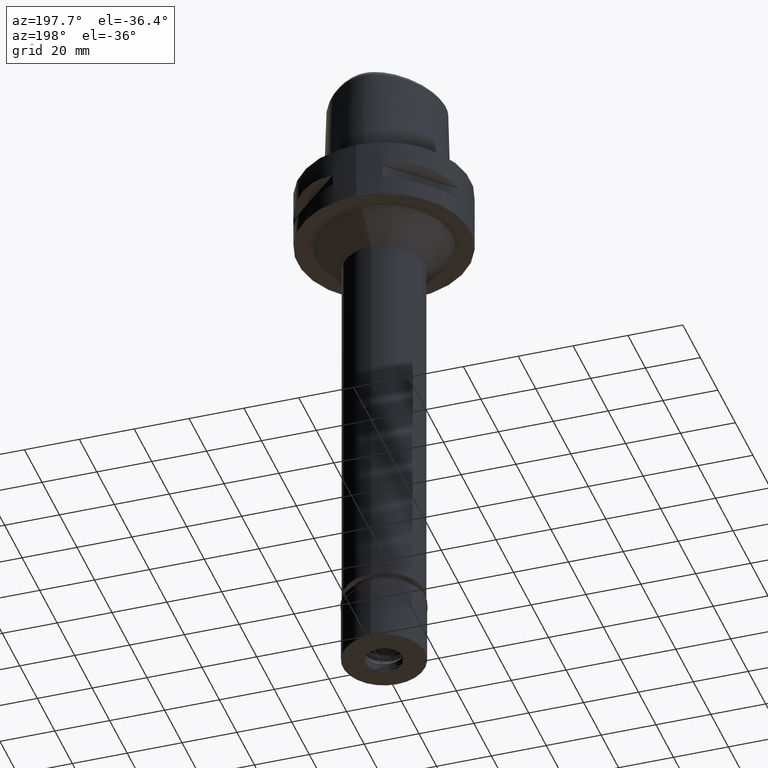
[diagram: clean part render]
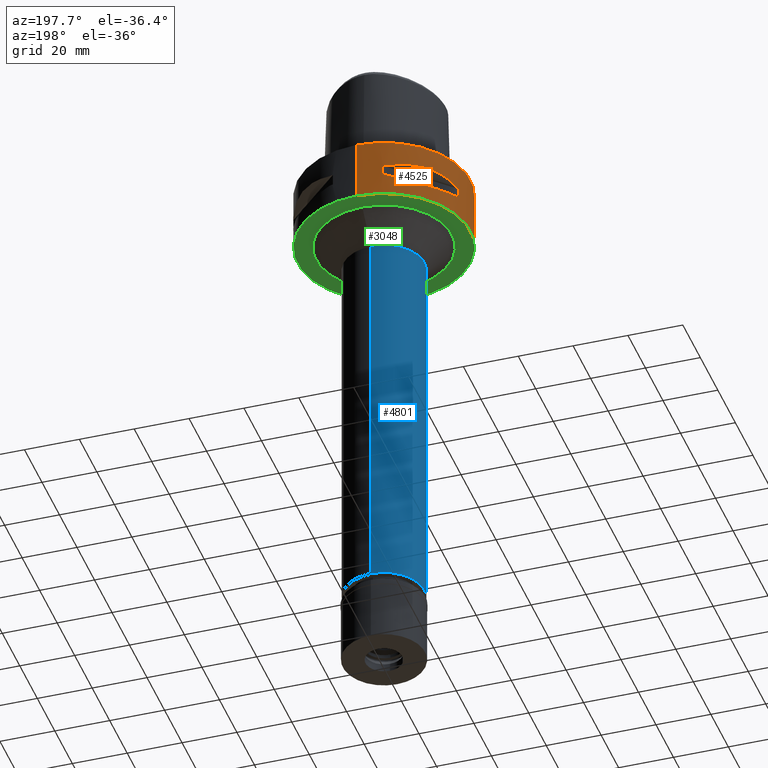
[diagram: same view with three faces highlighted in distinct colors, each labeled with its STEP entity id]
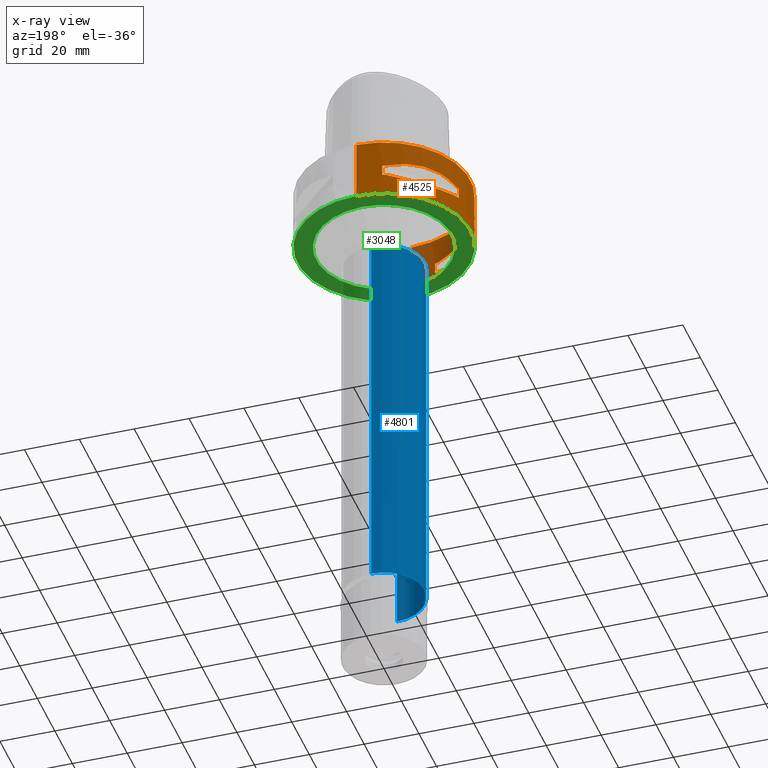
[diagram: x-ray of the same camera — body ghosted, the three highlighted faces saturated]
A machine part, auxiliary view with three faces highlighted in distinct colors.
The next image is the same camera in x-ray (body ghosted, the three faces saturated) — at least one of them is partly hidden behind the body in this view.
Their STEP definitions:

[orange] entity #4525 — the highlighted cylindrical surface (partial cylindrical patch) has radius 31.5 mm, axis along (0, 0, -1).
#47 = VERTEX_POINT ( 'NONE', #509 ) ;
#72 = CARTESIAN_POINT ( 'NONE',  ( -28.92472615208536979, 12.70097436174572181, -9.353533115232664841 ) ) ;
#113 = LINE ( 'NONE', #529, #1449 ) ;
#125 = CARTESIAN_POINT ( 'NONE',  ( -21.46242677079953509, -23.08532645887220625, -15.83938991065873481 ) ) ;
#146 = CARTESIAN_POINT ( 'NONE',  ( -14.84422749211551995, 27.88214534463901018, -8.906206096465611566 ) ) ;
#150 = CARTESIAN_POINT ( 'NONE',  ( -26.58330558444622227, -16.89910283486742415, -15.40446471307544662 ) ) ;
#162 = CARTESIAN_POINT ( 'NONE',  ( -30.19251670572000279, 8.981198972019999616, -14.05000000000000071 ) ) ;
#180 = CARTESIAN_POINT ( 'NONE',  ( -18.59229662067467004, -25.43927894890445529, -15.62866126335025641 ) ) ;
#182 = AXIS2_PLACEMENT_3D ( 'NONE', #1650, #2127, #4328 ) ;
#198 = CARTESIAN_POINT ( 'NONE',  ( -24.23018836745160698, 20.18579225686725565, -15.78559396979343354 ) ) ;
#201 = CARTESIAN_POINT ( 'NONE',  ( -12.70097436174568983, -28.92472615208535558, -9.353533115232664841 ) ) ;
#234 = VECTOR ( 'NONE', #3731, 1000.000000000000000 ) ;
#241 = CARTESIAN_POINT ( 'NONE',  ( 0.0000000000000000000, 1.340988245065999776E-14, -9.950000000000001066 ) ) ;
#242 = ORIENTED_EDGE ( 'NONE', *, *, #1551, .F. ) ;
#365 = ORIENTED_EDGE ( 'NONE', *, *, #4397, .T. ) ;
#418 = VERTEX_POINT ( 'NONE', #3786 ) ;
#429 = FACE_OUTER_BOUND ( 'NONE', #583, .T. ) ;
#450 = CARTESIAN_POINT ( 'NONE',  ( -18.81455742174598811, 25.37277178159837732, -8.309746333095063164 ) ) ;
#472 = CARTESIAN_POINT ( 'NONE',  ( -26.60451452154899243, -16.86571563436900334, -15.39949295786335703 ) ) ;
#509 = CARTESIAN_POINT ( 'NONE',  ( -29.71690375017999841, 10.44775724750000023, -14.05000000000000071 ) ) ;
#529 = CARTESIAN_POINT ( 'NONE',  ( 0.0000000000000000000, 31.50000000000000000, 0.0000000000000000000 ) ) ;
#566 = CARTESIAN_POINT ( 'NONE',  ( -11.58970337495298608, 29.31542262584333969, -14.35229357167303021 ) ) ;
#572 = CARTESIAN_POINT ( 'NONE',  ( -27.64634172017731117, -15.11986997311805325, -15.11207862404262947 ) ) ;
#583 = EDGE_LOOP ( 'NONE', ( #365, #3589, #2573, #2728 ) ) ;
#590 = CARTESIAN_POINT ( 'NONE',  ( -26.48642424310615340, 17.05047092244463869, -15.42670883407968496 ) ) ;
#608 = EDGE_CURVE ( 'NONE', #3938, #1888, #3633, .T. ) ;
#646 = DIRECTION ( 'NONE',  ( 0.0000000000000000000, 0.0000000000000000000, -1.000000000000000000 ) ) ;
#700 = CARTESIAN_POINT ( 'NONE',  ( -8.981198972019999616, 30.19251670572000279, -9.950000000000001066 ) ) ;
#786 = DIRECTION ( 'NONE',  ( 0.0000000000000000000, 0.0000000000000000000, 1.000000000000000000 ) ) ;
#795 = CIRCLE ( 'NONE', #3340, 31.50000000000000711 ) ;
#824 = VERTEX_POINT ( 'NONE', #1528 ) ;
#836 = DIRECTION ( 'NONE',  ( 0.0000000000000000000, 1.000000000000000000, 0.0000000000000000000 ) ) ;
#864 = CARTESIAN_POINT ( 'NONE',  ( -20.18579225689235912, -24.23018836743684545, -15.78559396979766305 ) ) ;
#866 = CARTESIAN_POINT ( 'NONE',  ( 0.0000000000000000000, 1.340988245065999776E-14, -14.05000000000000071 ) ) ;
#880 = VERTEX_POINT ( 'NONE', #1819 ) ;
#885 = DIRECTION ( 'NONE',  ( -0.2851174276831918153, -0.9584925938322735872, 0.0000000000000000000 ) ) ;
#889 = EDGE_CURVE ( 'NONE', #2502, #1108, #1114, .T. ) ;
#890 = EDGE_CURVE ( 'NONE', #2289, #2976, #3480, .T. ) ;
#898 = LINE ( 'NONE', #3965, #1818 ) ;
#967 = CARTESIAN_POINT ( 'NONE',  ( -10.44775724750000023, 29.71690375017999841, -14.05000000000000071 ) ) ;
#982 = DIRECTION ( 'NONE',  ( -0.9433937698468619626, 0.3316748332540863653, 0.0000000000000000000 ) ) ;
#994 = CARTESIAN_POINT ( 'NONE',  ( -16.89910283486704401, 26.58330558444640701, -15.40446471307534893 ) ) ;
#1020 = CARTESIAN_POINT ( 'NONE',  ( -26.01217882834692929, 17.76952662672333716, -15.52665221626398839 ) ) ;
#1045 = CARTESIAN_POINT ( 'NONE',  ( -29.71690375017999841, 10.44775724750000023, -9.950000000002001244 ) ) ;
#1058 = DIRECTION ( 'NONE',  ( -0.9433937698468619626, -0.3316748332540863653, 0.0000000000000000000 ) ) ;
#1093 = VERTEX_POINT ( 'NONE', #4224 ) ;
#1108 = VERTEX_POINT ( 'NONE', #2651 ) ;
#1114 = LINE ( 'NONE', #3319, #234 ) ;
#1137 = VERTEX_POINT ( 'NONE', #2723 ) ;
#1168 = DIRECTION ( 'NONE',  ( 0.0000000000000000000, -1.000000000000000000, 0.0000000000000000000 ) ) ;
#1170 = B_SPLINE_CURVE_WITH_KNOTS ( 'NONE', 3,
 ( #3961, #3596, #3546, #3988, #1298, #3934, #2809, #4307, #201, #1704 ),
 .UNSPECIFIED., .F., .F.,
 ( 4, 2, 2, 2, 4 ),
 ( 0.0000000000000000000, 0.2500000000000000000, 0.5000000000000000000, 0.7500000000000000000, 1.000000000000000000 ),
 .UNSPECIFIED. ) ;
#1215 = CARTESIAN_POINT ( 'NONE',  ( 0.0000000000000000000, 1.340988245065999776E-14, -14.05000000000000071 ) ) ;
#1218 = VERTEX_POINT ( 'NONE', #4742 ) ;
#1223 = CARTESIAN_POINT ( 'NONE',  ( -23.90617837153844860, 20.64154884321406058, -8.160613588491569814 ) ) ;
#1227 = B_SPLINE_CURVE_WITH_KNOTS ( 'NONE', 3,
 ( #967, #566, #2452, #2123, #1748, #4403, #4753, #1334, #3985, #994, #2152, #4350, #3690, #198, #4781, #1020, #3242, #1358, #590, #4806, #3636, #3274, #1384, #3958 ),
 .UNSPECIFIED., .F., .F.,
 ( 4, 1, 1, 1, 1, 1, 2, 2, 2, 1, 1, 1, 1, 1, 2, 2, 4 ),
 ( 0.0000000000000000000, 0.1249999999999908684, 0.1874999999999862887, 0.2187499999999841516, 0.2343749999999829858, 0.2421874999999825973, 0.2460937499999824030, 0.2499999999999822364, 0.4999999999999892308, 0.6249999999999928946, 0.6874999999999945599, 0.7187499999999956701, 0.7343749999999963363, 0.7421874999999965583, 0.7460937499999964473, 0.7499999999999963363, 1.000000000000000000 ),
 .UNSPECIFIED. ) ;
#1273 = CARTESIAN_POINT ( 'NONE',  ( -12.73197616788688613, -28.91382665368660909, -14.65467361754157416 ) ) ;
#1296 = CARTESIAN_POINT ( 'NONE',  ( -25.37272068407227721, 18.81462633020658970, -8.309724968634812470 ) ) ;
#1298 = CARTESIAN_POINT ( 'NONE',  ( -23.90617837153842729, -20.64154884321405703, -8.160627831289135159 ) ) ;
#1299 = CARTESIAN_POINT ( 'NONE',  ( -25.32725744467784779, -18.86897208072815246, -15.69588095933470129 ) ) ;
#1318 = CARTESIAN_POINT ( 'NONE',  ( -17.05047092244640083, -26.48642424310511601, -15.42670883407999227 ) ) ;
#1330 = ORIENTED_EDGE ( 'NONE', *, *, #4597, .F. ) ;
#1334 = CARTESIAN_POINT ( 'NONE',  ( -16.80193241490824008, 26.64486562695909555, -15.38992683736019096 ) ) ;
#1358 = CARTESIAN_POINT ( 'NONE',  ( -26.42800887047648928, 17.14106442934974339, -15.43984550238795883 ) ) ;
#1384 = CARTESIAN_POINT ( 'NONE',  ( -28.91382665368477944, 12.73197616789208197, -14.65467361754293485 ) ) ;
#1449 = VECTOR ( 'NONE', #3160, 1000.000000000000000 ) ;
#1468 = CARTESIAN_POINT ( 'NONE',  ( 0.0000000000000000000, 31.50000000000000000, 0.0000000000000000000 ) ) ;
#1508 = LINE ( 'NONE', #3030, #3099 ) ;
#1528 = CARTESIAN_POINT ( 'NONE',  ( -10.44775724750000023, -29.71690375017999841, -9.950000000002001244 ) ) ;
#1534 = CARTESIAN_POINT ( 'NONE',  ( 0.0000000000000000000, 1.340988245065999776E-14, 9.500000000000000000 ) ) ;
#1551 = EDGE_CURVE ( 'NONE', #3938, #2397, #898, .T. ) ;
#1581 = CARTESIAN_POINT ( 'NONE',  ( -29.71690375017999841, 10.44775724750000023, -9.950000000002001244 ) ) ;
#1600 = AXIS2_PLACEMENT_3D ( 'NONE', #3765, #786, #836 ) ;
#1602 = ORIENTED_EDGE ( 'NONE', *, *, #608, .T. ) ;
#1650 = CARTESIAN_POINT ( 'NONE',  ( 0.0000000000000000000, 1.340988245065999776E-14, 0.0000000000000000000 ) ) ;
#1681 = EDGE_CURVE ( 'NONE', #2502, #47, #4266, .T. ) ;
#1702 = EDGE_CURVE ( 'NONE', #4421, #1218, #4433, .T. ) ;
#1704 = CARTESIAN_POINT ( 'NONE',  ( -10.44775724750000023, -29.71690375017999841, -9.950000000002001244 ) ) ;
#1705 = CARTESIAN_POINT ( 'NONE',  ( -17.35163608580627681, -26.29071741523403816, -15.46976201925846439 ) ) ;
#1707 = CARTESIAN_POINT ( 'NONE',  ( 0.0000000000000000000, 1.340988245065999776E-14, -14.05000000000000071 ) ) ;
#1748 = CARTESIAN_POINT ( 'NONE',  ( -16.03138450079080712, 27.11872488589147068, -15.26880420108086156 ) ) ;
#1798 = B_SPLINE_CURVE_WITH_KNOTS ( 'NONE', 3,
 ( #3544, #3839, #146, #450, #4684, #1223, #1296, #3470, #72, #1581 ),
 .UNSPECIFIED., .F., .F.,
 ( 4, 2, 2, 2, 4 ),
 ( 0.0000000000000000000, 0.2499999999999998335, 0.4999999999999998890, 0.7499999999999998890, 1.000000000000000000 ),
 .UNSPECIFIED. ) ;
#1818 = VECTOR ( 'NONE', #2813, 1000.000000000000000 ) ;
#1819 = CARTESIAN_POINT ( 'NONE',  ( 0.0000000000000000000, -31.50000000000000000, 0.0000000000000000000 ) ) ;
#1820 = AXIS2_PLACEMENT_3D ( 'NONE', #241, #2900, #4064 ) ;
#1830 = AXIS2_PLACEMENT_3D ( 'NONE', #2064, #4365, #982 ) ;
#1860 = EDGE_CURVE ( 'NONE', #3735, #418, #4410, .T. ) ;
#1877 = CARTESIAN_POINT ( 'NONE',  ( 0.0000000000000000000, -31.50000000000000000, 0.0000000000000000000 ) ) ;
#1888 = VERTEX_POINT ( 'NONE', #2255 ) ;
#1967 = EDGE_CURVE ( 'NONE', #880, #1093, #2234, .T. ) ;
#1974 = B_SPLINE_CURVE_WITH_KNOTS ( 'NONE', 3,
 ( #4691, #2811, #2006, #572, #2385, #2435, #4639, #2085, #472, #150, #1299, #3526, #125, #864, #180, #3913, #1705, #4253, #1318, #3888, #3597, #1978, #1273, #4308 ),
 .UNSPECIFIED., .F., .F.,
 ( 4, 1, 1, 1, 1, 1, 2, 2, 2, 1, 1, 1, 1, 1, 2, 2, 4 ),
 ( 0.0000000000000000000, 0.1249999999999996947, 0.1874999999999995837, 0.2187499999999996392, 0.2343749999999997224, 0.2421874999999996392, 0.2460937499999994726, 0.2499999999999993339, 0.4999999999999910072, 0.6249999999999866773, 0.6874999999999845679, 0.7187499999999832356, 0.7343749999999825695, 0.7421874999999822364, 0.7460937499999822364, 0.7499999999999822364, 1.000000000000000000 ),
 .UNSPECIFIED. ) ;
#1978 = CARTESIAN_POINT ( 'NONE',  ( -14.89252659057813055, -27.86285265926396093, -15.10765629752128092 ) ) ;
#1996 = VERTEX_POINT ( 'NONE', #1468 ) ;
#2006 = CARTESIAN_POINT ( 'NONE',  ( -28.62019653467917379, -13.25636937906317847, -14.74888225542168207 ) ) ;
#2025 = ORIENTED_EDGE ( 'NONE', *, *, #1860, .F. ) ;
#2049 = AXIS2_PLACEMENT_3D ( 'NONE', #2575, #2194, #2548 ) ;
#2064 = CARTESIAN_POINT ( 'NONE',  ( 0.0000000000000000000, 1.340988245065999776E-14, -9.950000000000001066 ) ) ;
#2069 = CIRCLE ( 'NONE', #2866, 31.50000000000000711 ) ;
#2085 = CARTESIAN_POINT ( 'NONE',  ( -26.64486562695883620, -16.80193241490900746, -15.38992683736042011 ) ) ;
#2123 = CARTESIAN_POINT ( 'NONE',  ( -15.11986997311003300, 27.64634172018012848, -15.11207862404048008 ) ) ;
#2127 = DIRECTION ( 'NONE',  ( 0.0000000000000000000, 0.0000000000000000000, -1.000000000000000000 ) ) ;
#2138 = AXIS2_PLACEMENT_3D ( 'NONE', #866, #2389, #3891 ) ;
#2149 = CIRCLE ( 'NONE', #1830, 31.50000000000000711 ) ;
#2150 = DIRECTION ( 'NONE',  ( -0.3316748332540863653, -0.9433937698468619626, 0.0000000000000000000 ) ) ;
#2152 = CARTESIAN_POINT ( 'NONE',  ( -18.86897208075159327, 25.32725744466621975, -15.69588095933951699 ) ) ;
#2177 = CARTESIAN_POINT ( 'NONE',  ( -30.19251670572000279, -8.981198972019999616, -9.950000000000001066 ) ) ;
#2194 = DIRECTION ( 'NONE',  ( 0.0000000000000000000, 0.0000000000000000000, 1.000000000000000000 ) ) ;
#2234 = LINE ( 'NONE', #1877, #4427 ) ;
#2255 = CARTESIAN_POINT ( 'NONE',  ( -10.44775724750000023, -29.71690375017999841, -14.05000000000000071 ) ) ;
#2261 = ORIENTED_EDGE ( 'NONE', *, *, #2341, .T. ) ;
#2270 = EDGE_CURVE ( 'NONE', #2313, #4892, #1798, .T. ) ;
#2280 = EDGE_CURVE ( 'NONE', #2642, #47, #1227, .T. ) ;
#2289 = VERTEX_POINT ( 'NONE', #2177 ) ;
#2313 = VERTEX_POINT ( 'NONE', #4030 ) ;
#2341 = EDGE_CURVE ( 'NONE', #3735, #2313, #4675, .T. ) ;
#2385 = CARTESIAN_POINT ( 'NONE',  ( -27.11872488588982577, -16.03138450079550026, -15.26880420108212633 ) ) ;
#2389 = DIRECTION ( 'NONE',  ( 0.0000000000000000000, 0.0000000000000000000, -1.000000000000000000 ) ) ;
#2397 = VERTEX_POINT ( 'NONE', #4325 ) ;
#2435 = CARTESIAN_POINT ( 'NONE',  ( -26.84474411198696231, -16.48208282229673927, -15.34094883778413454 ) ) ;
#2452 = CARTESIAN_POINT ( 'NONE',  ( -13.25636937905250079, 28.62019653468292901, -14.74888225541883280 ) ) ;
#2502 = VERTEX_POINT ( 'NONE', #162 ) ;
#2548 = DIRECTION ( 'NONE',  ( -0.9584925938322735872, -0.2851174276831918153, 0.0000000000000000000 ) ) ;
#2573 = ORIENTED_EDGE ( 'NONE', *, *, #4039, .T. ) ;
#2575 = CARTESIAN_POINT ( 'NONE',  ( 0.0000000000000000000, 1.340988245065999776E-14, -9.950000000000001066 ) ) ;
#2642 = VERTEX_POINT ( 'NONE', #2740 ) ;
#2651 = CARTESIAN_POINT ( 'NONE',  ( -30.19251670572000279, 8.981198972016999349, -9.950000000000001066 ) ) ;
#2705 = DIRECTION ( 'NONE',  ( 0.0000000000000000000, 0.0000000000000000000, -1.000000000000000000 ) ) ;
#2723 = CARTESIAN_POINT ( 'NONE',  ( 0.0000000000000000000, 31.50000000000000000, -22.00000000000000000 ) ) ;
#2727 = DIRECTION ( 'NONE',  ( 0.0000000000000000000, 0.0000000000000000000, -1.000000000000000000 ) ) ;
#2728 = ORIENTED_EDGE ( 'NONE', *, *, #3941, .T. ) ;
#2740 = CARTESIAN_POINT ( 'NONE',  ( -10.44775724750000023, 29.71690375017999841, -14.05000000000000071 ) ) ;
#2786 = AXIS2_PLACEMENT_3D ( 'NONE', #1534, #2705, #1168 ) ;
#2809 = CARTESIAN_POINT ( 'NONE',  ( -18.81462633020657194, -25.37272068407227010, -8.309724968634812470 ) ) ;
#2811 = CARTESIAN_POINT ( 'NONE',  ( -29.31542262584122227, -11.58970337495909853, -14.35229357167468578 ) ) ;
#2813 = DIRECTION ( 'NONE',  ( 0.0000000000000000000, 0.0000000000000000000, 1.000000000000000000 ) ) ;
#2866 = AXIS2_PLACEMENT_3D ( 'NONE', #1215, #2727, #3485 ) ;
#2900 = DIRECTION ( 'NONE',  ( 0.0000000000000000000, 0.0000000000000000000, 1.000000000000000000 ) ) ;
#2961 = EDGE_CURVE ( 'NONE', #4421, #1888, #1974, .T. ) ;
#2976 = VERTEX_POINT ( 'NONE', #3936 ) ;
#2999 = ORIENTED_EDGE ( 'NONE', *, *, #890, .T. ) ;
#3030 = CARTESIAN_POINT ( 'NONE',  ( -30.19251670572000279, -8.981198972016999349, -9.950000000000001066 ) ) ;
#3034 = DIRECTION ( 'NONE',  ( 0.0000000000000000000, 0.0000000000000000000, -1.000000000000000000 ) ) ;
#3099 = VECTOR ( 'NONE', #4537, 1000.000000000000000 ) ;
#3122 = ORIENTED_EDGE ( 'NONE', *, *, #889, .F. ) ;
#3160 = DIRECTION ( 'NONE',  ( 0.0000000000000000000, 0.0000000000000000000, -1.000000000000000000 ) ) ;
#3217 = ORIENTED_EDGE ( 'NONE', *, *, #2270, .T. ) ;
#3219 = DIRECTION ( 'NONE',  ( 0.0000000000000000000, 0.0000000000000000000, 1.000000000000000000 ) ) ;
#3242 = CARTESIAN_POINT ( 'NONE',  ( -26.29071741523750916, 17.35163608580039707, -15.46976201925746786 ) ) ;
#3252 = EDGE_CURVE ( 'NONE', #824, #2397, #795, .T. ) ;
#3266 = CIRCLE ( 'NONE', #182, 31.50000000000000000 ) ;
#3274 = CARTESIAN_POINT ( 'NONE',  ( -27.86285265926213128, 14.89252659058332462, -15.10765629752265049 ) ) ;
#3319 = CARTESIAN_POINT ( 'NONE',  ( -30.19251670572000279, 8.981198972016999349, -14.05000000000000071 ) ) ;
#3332 = AXIS2_PLACEMENT_3D ( 'NONE', #1707, #3646, #1058 ) ;
#3340 = AXIS2_PLACEMENT_3D ( 'NONE', #4805, #3219, #2150 ) ;
#3355 = ORIENTED_EDGE ( 'NONE', *, *, #2961, .F. ) ;
#3398 = FACE_BOUND ( 'NONE', #3460, .T. ) ;
#3454 = EDGE_LOOP ( 'NONE', ( #4516, #3122, #4173, #3567, #4321, #2025, #2261, #3217 ) ) ;
#3460 = EDGE_LOOP ( 'NONE', ( #3466, #242, #1602, #3355, #3809, #1330, #2999, #3857 ) ) ;
#3465 = EDGE_CURVE ( 'NONE', #4892, #1108, #2149, .T. ) ;
#3466 = ORIENTED_EDGE ( 'NONE', *, *, #3252, .T. ) ;
#3470 = CARTESIAN_POINT ( 'NONE',  ( -27.88210502990660444, 14.84430321566183508, -8.906184732005364424 ) ) ;
#3480 = CIRCLE ( 'NONE', #2049, 31.50000000000001776 ) ;
#3485 = DIRECTION ( 'NONE',  ( -0.3316748332540863653, 0.9433937698468619626, 0.0000000000000000000 ) ) ;
#3489 = CARTESIAN_POINT ( 'NONE',  ( -29.71690375017999841, -10.44775724750000023, -14.05000000000000071 ) ) ;
#3490 = CIRCLE ( 'NONE', #1600, 31.50000000000000000 ) ;
#3526 = CARTESIAN_POINT ( 'NONE',  ( -23.89673728052704504, -20.65093790438166010, -15.83935804901764932 ) ) ;
#3544 = CARTESIAN_POINT ( 'NONE',  ( -10.44775724750000023, 29.71690375017999841, -9.950000000002001244 ) ) ;
#3546 = CARTESIAN_POINT ( 'NONE',  ( -27.88214534463898175, -14.84422749211551640, -8.906206096465613342 ) ) ;
#3567 = ORIENTED_EDGE ( 'NONE', *, *, #2280, .F. ) ;
#3589 = ORIENTED_EDGE ( 'NONE', *, *, #1967, .F. ) ;
#3596 = CARTESIAN_POINT ( 'NONE',  ( -28.92474506841556092, -12.70092055739798376, -9.353547358206164120 ) ) ;
#3597 = CARTESIAN_POINT ( 'NONE',  ( -16.96123479565102343, -26.54368690921830520, -15.41365572341627121 ) ) ;
#3633 = CIRCLE ( 'NONE', #3712, 31.50000000000001776 ) ;
#3636 = CARTESIAN_POINT ( 'NONE',  ( -26.54368690921832652, 16.96123479565093461, -15.41365572341623924 ) ) ;
#3644 = EDGE_CURVE ( 'NONE', #2642, #418, #2069, .T. ) ;
#3646 = DIRECTION ( 'NONE',  ( 0.0000000000000000000, 0.0000000000000000000, -1.000000000000000000 ) ) ;
#3690 = CARTESIAN_POINT ( 'NONE',  ( -23.08532645888064394, 21.46242677078517502, -15.83938991065631363 ) ) ;
#3712 = AXIS2_PLACEMENT_3D ( 'NONE', #4301, #3858, #885 ) ;
#3731 = DIRECTION ( 'NONE',  ( 0.0000000000000000000, 0.0000000000000000000, 1.000000000000000000 ) ) ;
#3735 = VERTEX_POINT ( 'NONE', #700 ) ;
#3765 = CARTESIAN_POINT ( 'NONE',  ( 0.0000000000000000000, 1.340988245065999776E-14, -22.00000000000000000 ) ) ;
#3786 = CARTESIAN_POINT ( 'NONE',  ( -8.981198972016999349, 30.19251670572000279, -14.05000000000000071 ) ) ;
#3809 = ORIENTED_EDGE ( 'NONE', *, *, #1702, .T. ) ;
#3839 = CARTESIAN_POINT ( 'NONE',  ( -12.70092055739799797, 28.92474506841556803, -9.353547358206165896 ) ) ;
#3857 = ORIENTED_EDGE ( 'NONE', *, *, #4128, .T. ) ;
#3858 = DIRECTION ( 'NONE',  ( 0.0000000000000000000, 0.0000000000000000000, -1.000000000000000000 ) ) ;
#3859 = CYLINDRICAL_SURFACE ( 'NONE', #2786, 31.50000000000000000 ) ;
#3888 = CARTESIAN_POINT ( 'NONE',  ( -16.98999780422360573, -26.52527364208699723, -15.41788098766641646 ) ) ;
#3891 = DIRECTION ( 'NONE',  ( -0.9584925938322735872, 0.2851174276831918153, 0.0000000000000000000 ) ) ;
#3913 = CARTESIAN_POINT ( 'NONE',  ( -17.76952662673432570, -26.01217882834047401, -15.52665221626585002 ) ) ;
#3919 = CARTESIAN_POINT ( 'NONE',  ( -8.981198972019999616, -30.19251670572000279, -14.05000000000000071 ) ) ;
#3934 = CARTESIAN_POINT ( 'NONE',  ( -20.64154884321404637, -23.90617837153842729, -8.160613588491569814 ) ) ;
#3936 = CARTESIAN_POINT ( 'NONE',  ( -29.71690375017999841, -10.44775724750000023, -9.950000000002001244 ) ) ;
#3938 = VERTEX_POINT ( 'NONE', #3919 ) ;
#3941 = EDGE_CURVE ( 'NONE', #1996, #1137, #113, .T. ) ;
#3958 = CARTESIAN_POINT ( 'NONE',  ( -29.71690375017999841, 10.44775724750000023, -14.05000000000000071 ) ) ;
#3961 = CARTESIAN_POINT ( 'NONE',  ( -29.71690375017999841, -10.44775724750000023, -9.950000000002001244 ) ) ;
#3965 = CARTESIAN_POINT ( 'NONE',  ( -8.981198972016999349, -30.19251670572000279, -14.05000000000000071 ) ) ;
#3985 = CARTESIAN_POINT ( 'NONE',  ( -16.86571563436860188, 26.60451452154913454, -15.39949295786322558 ) ) ;
#3988 = CARTESIAN_POINT ( 'NONE',  ( -25.37277178159835955, -18.81455742174598456, -8.309746333095063164 ) ) ;
#4030 = CARTESIAN_POINT ( 'NONE',  ( -10.44775724750000023, 29.71690375017999841, -9.950000000002001244 ) ) ;
#4039 = EDGE_CURVE ( 'NONE', #880, #1996, #3266, .T. ) ;
#4040 = CARTESIAN_POINT ( 'NONE',  ( -8.981198972016999349, 30.19251670572000279, -9.950000000000001066 ) ) ;
#4064 = DIRECTION ( 'NONE',  ( -0.2851174276831918153, 0.9584925938322735872, 0.0000000000000000000 ) ) ;
#4128 = EDGE_CURVE ( 'NONE', #2976, #824, #1170, .T. ) ;
#4173 = ORIENTED_EDGE ( 'NONE', *, *, #1681, .T. ) ;
#4224 = CARTESIAN_POINT ( 'NONE',  ( 0.0000000000000000000, -31.50000000000000000, -22.00000000000000000 ) ) ;
#4231 = FACE_BOUND ( 'NONE', #3454, .T. ) ;
#4253 = CARTESIAN_POINT ( 'NONE',  ( -17.14106442935278807, -26.42800887047471647, -15.43984550238848108 ) ) ;
#4266 = CIRCLE ( 'NONE', #2138, 31.50000000000001776 ) ;
#4301 = CARTESIAN_POINT ( 'NONE',  ( 0.0000000000000000000, 1.340988245065999776E-14, -14.05000000000000071 ) ) ;
#4307 = CARTESIAN_POINT ( 'NONE',  ( -14.84430321566181910, -27.88210502990660444, -8.906184732005364424 ) ) ;
#4308 = CARTESIAN_POINT ( 'NONE',  ( -10.44775724750000023, -29.71690375017999841, -14.05000000000000071 ) ) ;
#4321 = ORIENTED_EDGE ( 'NONE', *, *, #3644, .T. ) ;
#4325 = CARTESIAN_POINT ( 'NONE',  ( -8.981198972016999349, -30.19251670572000279, -9.950000000000001066 ) ) ;
#4328 = DIRECTION ( 'NONE',  ( 0.0000000000000000000, -1.000000000000000000, 0.0000000000000000000 ) ) ;
#4345 = VECTOR ( 'NONE', #646, 1000.000000000000000 ) ;
#4350 = CARTESIAN_POINT ( 'NONE',  ( -20.65093790436479892, 23.89673728055571900, -15.83935804902246147 ) ) ;
#4365 = DIRECTION ( 'NONE',  ( 0.0000000000000000000, 0.0000000000000000000, 1.000000000000000000 ) ) ;
#4397 = EDGE_CURVE ( 'NONE', #1137, #1093, #3490, .T. ) ;
#4403 = CARTESIAN_POINT ( 'NONE',  ( -16.48208282229422039, 26.84474411198782207, -15.34094883778343110 ) ) ;
#4410 = LINE ( 'NONE', #4040, #4345 ) ;
#4421 = VERTEX_POINT ( 'NONE', #3489 ) ;
#4427 = VECTOR ( 'NONE', #3034, 1000.000000000000000 ) ;
#4433 = CIRCLE ( 'NONE', #3332, 31.50000000000000711 ) ;
#4516 = ORIENTED_EDGE ( 'NONE', *, *, #3465, .T. ) ;
#4525 = ADVANCED_FACE ( 'NONE', ( #429, #4231, #3398 ), #3859, .T. ) ;
#4537 = DIRECTION ( 'NONE',  ( 0.0000000000000000000, 0.0000000000000000000, -1.000000000000000000 ) ) ;
#4597 = EDGE_CURVE ( 'NONE', #2289, #1218, #1508, .T. ) ;
#4639 = CARTESIAN_POINT ( 'NONE',  ( -26.70521063584573085, -16.70616724746297521, -15.37546661818069893 ) ) ;
#4675 = CIRCLE ( 'NONE', #1820, 31.50000000000001776 ) ;
#4684 = CARTESIAN_POINT ( 'NONE',  ( -20.64154884321404992, 23.90617837153845571, -8.160627831289133383 ) ) ;
#4691 = CARTESIAN_POINT ( 'NONE',  ( -29.71690375017999841, -10.44775724750000023, -14.05000000000000071 ) ) ;
#4742 = CARTESIAN_POINT ( 'NONE',  ( -30.19251670572000279, -8.981198972016999349, -14.05000000000000071 ) ) ;
#4753 = CARTESIAN_POINT ( 'NONE',  ( -16.70616724746166426, 26.70521063584618915, -15.37546661818032945 ) ) ;
#4781 = CARTESIAN_POINT ( 'NONE',  ( -25.43927894891552910, 18.59229662065583355, -15.62866126334707850 ) ) ;
#4805 = CARTESIAN_POINT ( 'NONE',  ( 0.0000000000000000000, 1.340988245065999776E-14, -9.950000000000001066 ) ) ;
#4806 = CARTESIAN_POINT ( 'NONE',  ( -26.52527364208752303, 16.98999780422271044, -15.41788098766625659 ) ) ;
#4892 = VERTEX_POINT ( 'NONE', #1045 ) ;

[blue] entity #4801 — the highlighted cylindrical surface (partial cylindrical patch) has radius 14.75 mm, axis along (0, 0, -1).
#259 = CARTESIAN_POINT ( 'NONE',  ( 0.0000000000000000000, 0.0000000000000000000, -32.00000000000000000 ) ) ;
#341 = AXIS2_PLACEMENT_3D ( 'NONE', #259, #678, #1063 ) ;
#421 = VERTEX_POINT ( 'NONE', #4459 ) ;
#466 = VERTEX_POINT ( 'NONE', #2603 ) ;
#478 = CARTESIAN_POINT ( 'NONE',  ( 0.0000000000000000000, 14.75000000000000000, -32.00000000000000000 ) ) ;
#678 = DIRECTION ( 'NONE',  ( 0.0000000000000000000, 0.0000000000000000000, -1.000000000000000000 ) ) ;
#800 = VECTOR ( 'NONE', #3520, 1000.000000000000000 ) ;
#1063 = DIRECTION ( 'NONE',  ( 0.0000000000000000000, -1.000000000000000000, 0.0000000000000000000 ) ) ;
#1073 = CARTESIAN_POINT ( 'NONE',  ( 0.0000000000000000000, 1.340988245065999776E-14, -173.1999999999999886 ) ) ;
#1244 = EDGE_LOOP ( 'NONE', ( #3244, #2545, #1715, #4546 ) ) ;
#1317 = CARTESIAN_POINT ( 'NONE',  ( 0.0000000000000000000, 14.75000000000000000, -32.00000000000000000 ) ) ;
#1360 = VERTEX_POINT ( 'NONE', #3039 ) ;
#1434 = DIRECTION ( 'NONE',  ( 0.0000000000000000000, 0.0000000000000000000, -1.000000000000000000 ) ) ;
#1481 = CARTESIAN_POINT ( 'NONE',  ( 0.0000000000000000000, 1.340988245065999776E-14, 9.500000000000000000 ) ) ;
#1715 = ORIENTED_EDGE ( 'NONE', *, *, #3707, .T. ) ;
#1985 = AXIS2_PLACEMENT_3D ( 'NONE', #1481, #1434, #4085 ) ;
#2002 = CARTESIAN_POINT ( 'NONE',  ( 0.0000000000000000000, -14.75000000000000000, -32.00000000000000000 ) ) ;
#2233 = CIRCLE ( 'NONE', #341, 14.75000000000000000 ) ;
#2545 = ORIENTED_EDGE ( 'NONE', *, *, #3197, .F. ) ;
#2603 = CARTESIAN_POINT ( 'NONE',  ( 0.0000000000000000000, -14.75000000000000000, -173.1999999999999886 ) ) ;
#2898 = CYLINDRICAL_SURFACE ( 'NONE', #1985, 14.75000000000000000 ) ;
#3039 = CARTESIAN_POINT ( 'NONE',  ( 0.0000000000000000000, -14.75000000000000000, -32.00000000000000000 ) ) ;
#3197 = EDGE_CURVE ( 'NONE', #1360, #466, #4232, .T. ) ;
#3244 = ORIENTED_EDGE ( 'NONE', *, *, #3322, .T. ) ;
#3297 = FACE_OUTER_BOUND ( 'NONE', #1244, .T. ) ;
#3322 = EDGE_CURVE ( 'NONE', #421, #466, #3491, .T. ) ;
#3491 = CIRCLE ( 'NONE', #4125, 14.75000000000000000 ) ;
#3509 = DIRECTION ( 'NONE',  ( 0.0000000000000000000, 0.0000000000000000000, -1.000000000000000000 ) ) ;
#3520 = DIRECTION ( 'NONE',  ( 0.0000000000000000000, 0.0000000000000000000, -1.000000000000000000 ) ) ;
#3707 = EDGE_CURVE ( 'NONE', #1360, #4081, #2233, .T. ) ;
#3869 = LINE ( 'NONE', #478, #4362 ) ;
#3940 = EDGE_CURVE ( 'NONE', #4081, #421, #3869, .T. ) ;
#4063 = DIRECTION ( 'NONE',  ( 0.0000000000000000000, 1.000000000000000000, 0.0000000000000000000 ) ) ;
#4081 = VERTEX_POINT ( 'NONE', #1317 ) ;
#4085 = DIRECTION ( 'NONE',  ( 0.0000000000000000000, -1.000000000000000000, 0.0000000000000000000 ) ) ;
#4125 = AXIS2_PLACEMENT_3D ( 'NONE', #1073, #4456, #4063 ) ;
#4232 = LINE ( 'NONE', #2002, #800 ) ;
#4362 = VECTOR ( 'NONE', #3509, 1000.000000000000000 ) ;
#4456 = DIRECTION ( 'NONE',  ( 0.0000000000000000000, 0.0000000000000000000, 1.000000000000000000 ) ) ;
#4459 = CARTESIAN_POINT ( 'NONE',  ( 0.0000000000000000000, 14.75000000000000000, -173.1999999999999886 ) ) ;
#4546 = ORIENTED_EDGE ( 'NONE', *, *, #3940, .T. ) ;
#4801 = ADVANCED_FACE ( 'NONE', ( #3297 ), #2898, .T. ) ;

[green] entity #3048 — the highlighted planar face has unit normal (0, 0, -1).
#74 = CIRCLE ( 'NONE', #711, 31.50000000000000000 ) ;
#217 = CARTESIAN_POINT ( 'NONE',  ( 0.0000000000000000000, 24.75000000000000000, -22.00000000000000000 ) ) ;
#222 = FACE_BOUND ( 'NONE', #1187, .T. ) ;
#711 = AXIS2_PLACEMENT_3D ( 'NONE', #929, #3554, #3234 ) ;
#764 = VERTEX_POINT ( 'NONE', #3125 ) ;
#786 = DIRECTION ( 'NONE',  ( 0.0000000000000000000, 0.0000000000000000000, 1.000000000000000000 ) ) ;
#790 = AXIS2_PLACEMENT_3D ( 'NONE', #1700, #2846, #1721 ) ;
#836 = DIRECTION ( 'NONE',  ( 0.0000000000000000000, 1.000000000000000000, 0.0000000000000000000 ) ) ;
#874 = AXIS2_PLACEMENT_3D ( 'NONE', #2274, #4248, #3074 ) ;
#929 = CARTESIAN_POINT ( 'NONE',  ( 0.0000000000000000000, 1.340988245065999776E-14, -22.00000000000000000 ) ) ;
#1093 = VERTEX_POINT ( 'NONE', #4224 ) ;
#1137 = VERTEX_POINT ( 'NONE', #2723 ) ;
#1187 = EDGE_LOOP ( 'NONE', ( #2423, #2368 ) ) ;
#1200 = EDGE_CURVE ( 'NONE', #1093, #1137, #74, .T. ) ;
#1222 = EDGE_LOOP ( 'NONE', ( #4106, #4703 ) ) ;
#1364 = DIRECTION ( 'NONE',  ( 0.0000000000000000000, 0.0000000000000000000, -1.000000000000000000 ) ) ;
#1600 = AXIS2_PLACEMENT_3D ( 'NONE', #3765, #786, #836 ) ;
#1700 = CARTESIAN_POINT ( 'NONE',  ( 0.0000000000000000000, 0.0000000000000000000, -22.00000000000000000 ) ) ;
#1721 = DIRECTION ( 'NONE',  ( 0.0000000000000000000, -1.000000000000000000, 0.0000000000000000000 ) ) ;
#1744 = AXIS2_PLACEMENT_3D ( 'NONE', #4759, #1364, #2881 ) ;
#2105 = FACE_OUTER_BOUND ( 'NONE', #1222, .T. ) ;
#2274 = CARTESIAN_POINT ( 'NONE',  ( 0.0000000000000000000, 0.0000000000000000000, -22.00000000000000000 ) ) ;
#2361 = VERTEX_POINT ( 'NONE', #217 ) ;
#2368 = ORIENTED_EDGE ( 'NONE', *, *, #2433, .F. ) ;
#2423 = ORIENTED_EDGE ( 'NONE', *, *, #4400, .F. ) ;
#2433 = EDGE_CURVE ( 'NONE', #764, #2361, #3726, .T. ) ;
#2639 = CIRCLE ( 'NONE', #874, 24.75000000000000000 ) ;
#2723 = CARTESIAN_POINT ( 'NONE',  ( 0.0000000000000000000, 31.50000000000000000, -22.00000000000000000 ) ) ;
#2846 = DIRECTION ( 'NONE',  ( 0.0000000000000000000, 0.0000000000000000000, -1.000000000000000000 ) ) ;
#2881 = DIRECTION ( 'NONE',  ( 0.0000000000000000000, -1.000000000000000000, 0.0000000000000000000 ) ) ;
#3048 = ADVANCED_FACE ( 'NONE', ( #2105, #222 ), #3249, .T. ) ;
#3074 = DIRECTION ( 'NONE',  ( 0.0000000000000000000, 1.000000000000000000, 0.0000000000000000000 ) ) ;
#3125 = CARTESIAN_POINT ( 'NONE',  ( 0.0000000000000000000, -24.75000000000000000, -22.00000000000000000 ) ) ;
#3234 = DIRECTION ( 'NONE',  ( 0.0000000000000000000, -1.000000000000000000, 0.0000000000000000000 ) ) ;
#3249 = PLANE ( 'NONE',  #1744 ) ;
#3490 = CIRCLE ( 'NONE', #1600, 31.50000000000000000 ) ;
#3554 = DIRECTION ( 'NONE',  ( 0.0000000000000000000, 0.0000000000000000000, 1.000000000000000000 ) ) ;
#3726 = CIRCLE ( 'NONE', #790, 24.75000000000000000 ) ;
#3765 = CARTESIAN_POINT ( 'NONE',  ( 0.0000000000000000000, 1.340988245065999776E-14, -22.00000000000000000 ) ) ;
#4106 = ORIENTED_EDGE ( 'NONE', *, *, #4397, .F. ) ;
#4224 = CARTESIAN_POINT ( 'NONE',  ( 0.0000000000000000000, -31.50000000000000000, -22.00000000000000000 ) ) ;
#4248 = DIRECTION ( 'NONE',  ( 0.0000000000000000000, 0.0000000000000000000, -1.000000000000000000 ) ) ;
#4397 = EDGE_CURVE ( 'NONE', #1137, #1093, #3490, .T. ) ;
#4400 = EDGE_CURVE ( 'NONE', #2361, #764, #2639, .T. ) ;
#4703 = ORIENTED_EDGE ( 'NONE', *, *, #1200, .F. ) ;
#4759 = CARTESIAN_POINT ( 'NONE',  ( 0.0000000000000000000, 0.0000000000000000000, -22.00000000000000000 ) ) ;